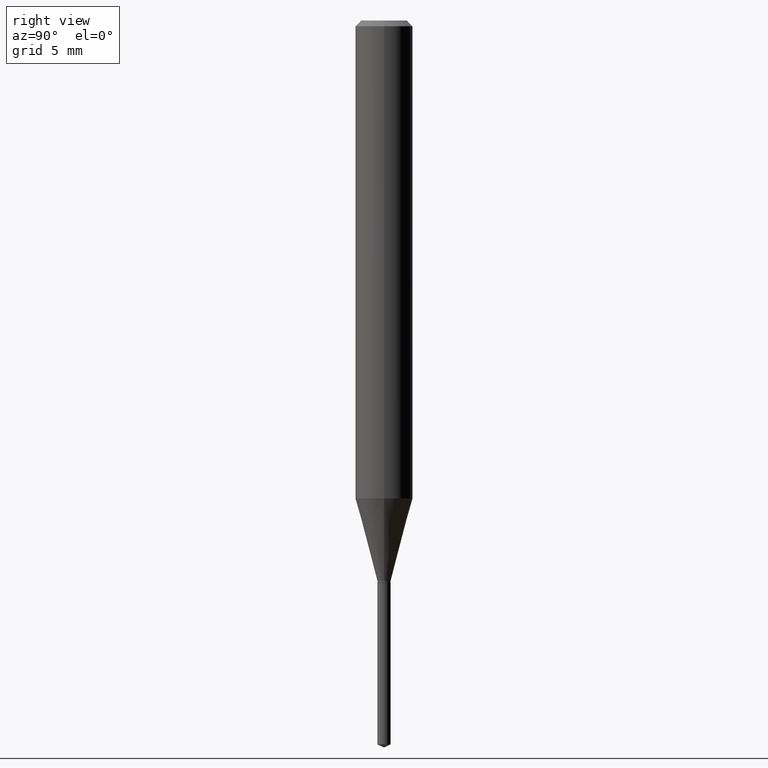
[diagram: clean part render]
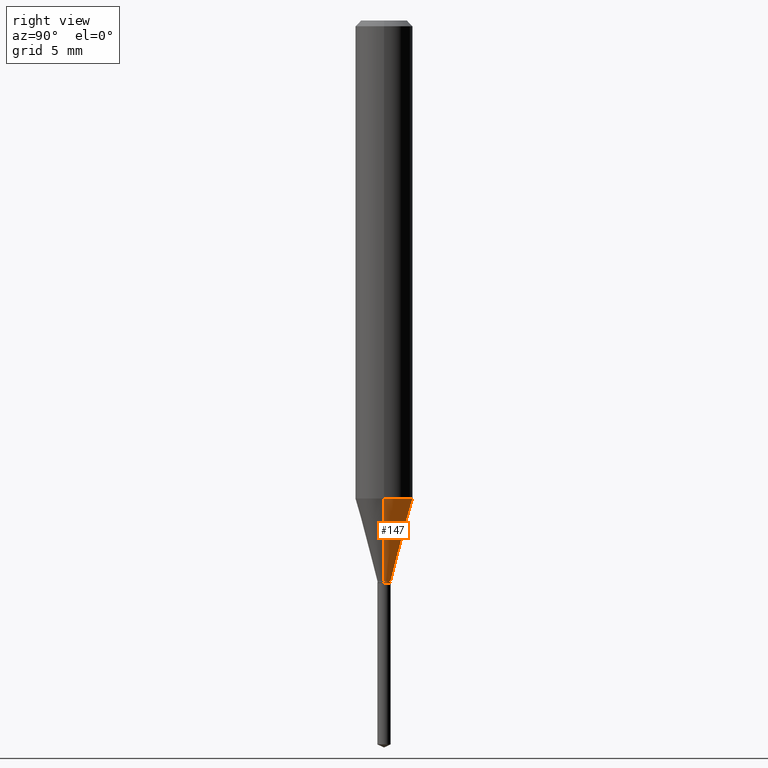
[diagram: same view with one face highlighted and labeled with its STEP entity id]
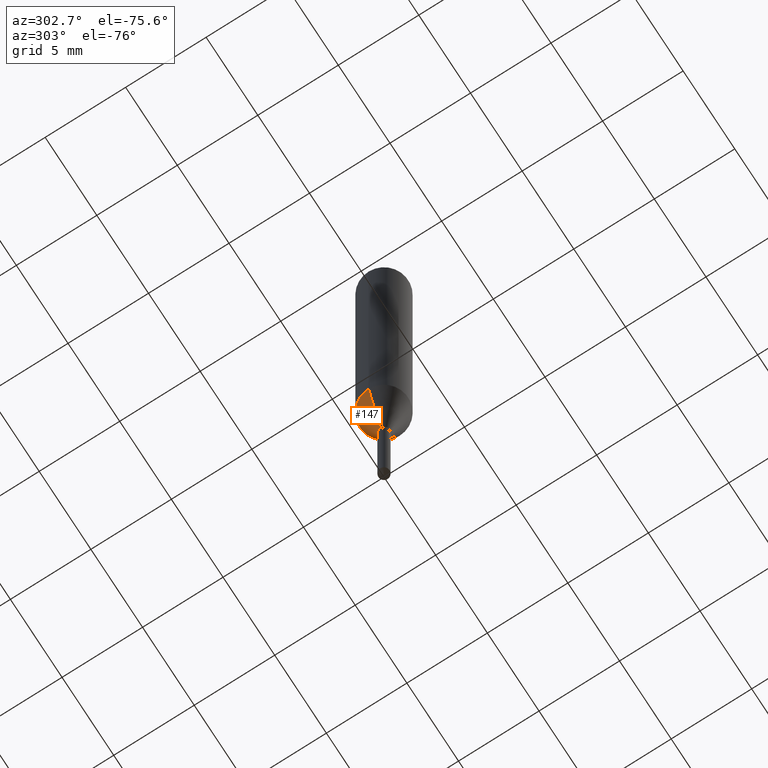
[diagram: same view with one face highlighted and labeled with its STEP entity id]
A machine part, right view. The second image highlights one B-rep face of the part: STEP entity #147.
A second angle (auxiliary view) of the same face is appended — the face is thin or edge-on in the first view.
In plain terms, the highlighted conical surface has half-angle 15 deg.
Its self-contained STEP definition (entity closure, byte-faithful):
#2 = EDGE_CURVE ( 'NONE', #226, #453, #181, .T. ) ;
#9 = DIRECTION ( 'NONE',  ( 0.2588190451025213501, 1.565188264969621968E-15, 0.9659258262890682012 ) ) ;
#30 = AXIS2_PLACEMENT_3D ( 'NONE', #110, #36, #193 ) ;
#31 = CIRCLE ( 'NONE', #461, 0.05905000000000011628 ) ;
#36 = DIRECTION ( 'NONE',  ( -2.445468806185136597E-29, 3.491481338843145583E-15, 1.000000000000000000 ) ) ;
#57 = DIRECTION ( 'NONE',  ( -2.445468806185136597E-29, 3.491481338843145583E-15, 1.000000000000000000 ) ) ;
#58 = DIRECTION ( 'NONE',  ( -2.445468806185136597E-29, 3.491481338843145583E-15, 1.000000000000000000 ) ) ;
#85 = CARTESIAN_POINT ( 'NONE',  ( 0.05905000000000013016, -3.847187489990594965E-15, -0.9837782907959944367 ) ) ;
#99 = EDGE_CURVE ( 'NONE', #453, #206, #216, .T. ) ;
#104 = DIRECTION ( 'NONE',  ( 1.000000000000000000, -6.982962677686266711E-15, 0.000000000000000000 ) ) ;
#110 = CARTESIAN_POINT ( 'NONE',  ( 2.820603721053936118E-29, -4.027074576221683782E-15, -1.153399999999999981 ) ) ;
#123 = CARTESIAN_POINT ( 'NONE',  ( -0.05905000000000013016, -3.015268058406879369E-15, -0.9837782907959944367 ) ) ;
#139 = AXIS2_PLACEMENT_3D ( 'NONE', #208, #58, #465 ) ;
#147 = ADVANCED_FACE ( 'NONE', ( #436 ), #155, .T. ) ;
#155 = CONICAL_SURFACE ( 'NONE', #30, 0.01359999999999999924, 0.2617993877991500740 ) ;
#172 = LINE ( 'NONE', #207, #394 ) ;
#175 = VERTEX_POINT ( 'NONE', #85 ) ;
#176 = CARTESIAN_POINT ( 'NONE',  ( 2.405799122343734810E-29, -3.434843543873219650E-15, -0.9837782907959944367 ) ) ;
#181 = CIRCLE ( 'NONE', #139, 0.01359999999999999924 ) ;
#193 = DIRECTION ( 'NONE',  ( 1.000000000000000000, -6.982962677686275388E-15, 0.000000000000000000 ) ) ;
#206 = VERTEX_POINT ( 'NONE', #123 ) ;
#207 = CARTESIAN_POINT ( 'NONE',  ( 0.01359999999999999924, -4.122042868638216732E-15, -1.153399999999999981 ) ) ;
#208 = CARTESIAN_POINT ( 'NONE',  ( 2.820603721053936118E-29, -4.027074576221683782E-15, -1.153399999999999981 ) ) ;
#216 = LINE ( 'NONE', #362, #375 ) ;
#226 = VERTEX_POINT ( 'NONE', #257 ) ;
#235 = ORIENTED_EDGE ( 'NONE', *, *, #320, .F. ) ;
#237 = ORIENTED_EDGE ( 'NONE', *, *, #480, .F. ) ;
#240 = EDGE_LOOP ( 'NONE', ( #302, #268, #237, #235 ) ) ;
#257 = CARTESIAN_POINT ( 'NONE',  ( 0.01359999999999999924, -4.122042868638216732E-15, -1.153399999999999981 ) ) ;
#268 = ORIENTED_EDGE ( 'NONE', *, *, #99, .T. ) ;
#302 = ORIENTED_EDGE ( 'NONE', *, *, #2, .T. ) ;
#320 = EDGE_CURVE ( 'NONE', #226, #175, #172, .T. ) ;
#331 = DIRECTION ( 'NONE',  ( -0.2588190451025213501, 5.211531920934551042E-15, 0.9659258262890682012 ) ) ;
#362 = CARTESIAN_POINT ( 'NONE',  ( -0.01359999999999999924, -3.930440764158309756E-15, -1.153399999999999981 ) ) ;
#375 = VECTOR ( 'NONE', #331, 39.37007874015747433 ) ;
#394 = VECTOR ( 'NONE', #9, 39.37007874015747433 ) ;
#436 = FACE_OUTER_BOUND ( 'NONE', #240, .T. ) ;
#453 = VERTEX_POINT ( 'NONE', #464 ) ;
#461 = AXIS2_PLACEMENT_3D ( 'NONE', #176, #57, #104 ) ;
#464 = CARTESIAN_POINT ( 'NONE',  ( -0.01359999999999999924, -3.936725430568227169E-15, -1.153399999999999981 ) ) ;
#465 = DIRECTION ( 'NONE',  ( 1.000000000000000000, -6.982962677686275388E-15, 0.000000000000000000 ) ) ;
#480 = EDGE_CURVE ( 'NONE', #175, #206, #31, .T. ) ;